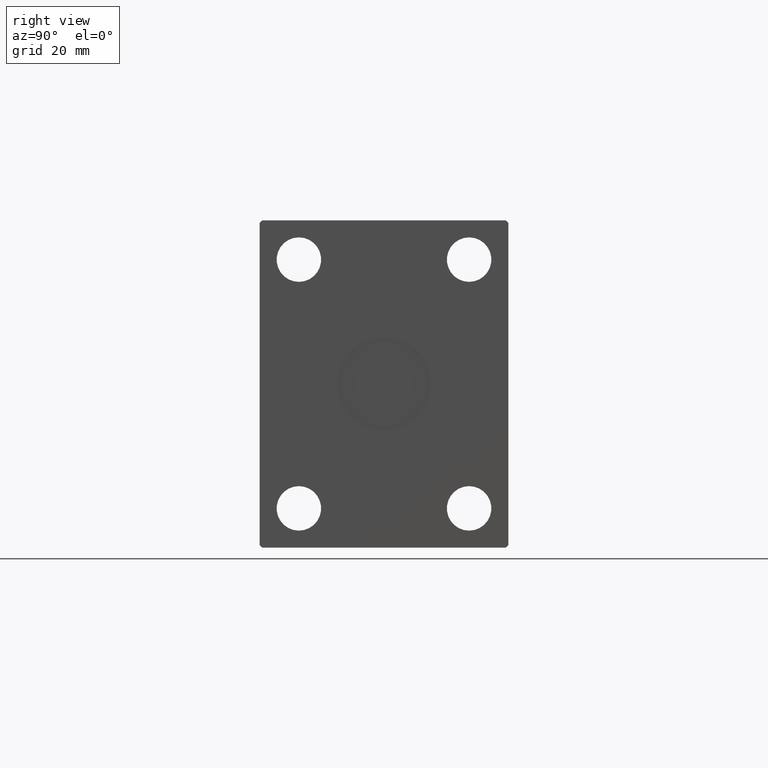
[diagram: clean part render]
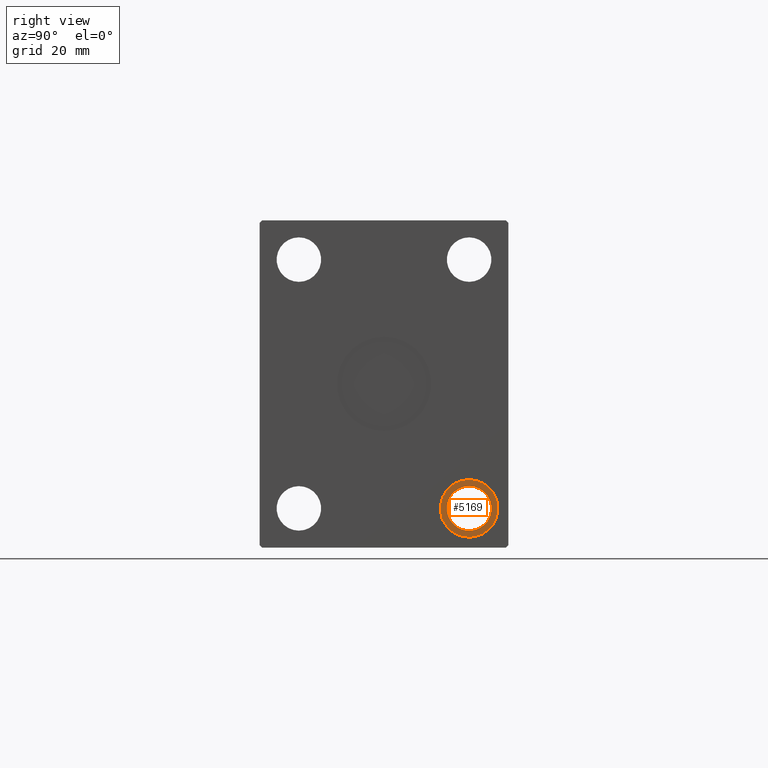
[diagram: same view with one face highlighted and labeled with its STEP entity id]
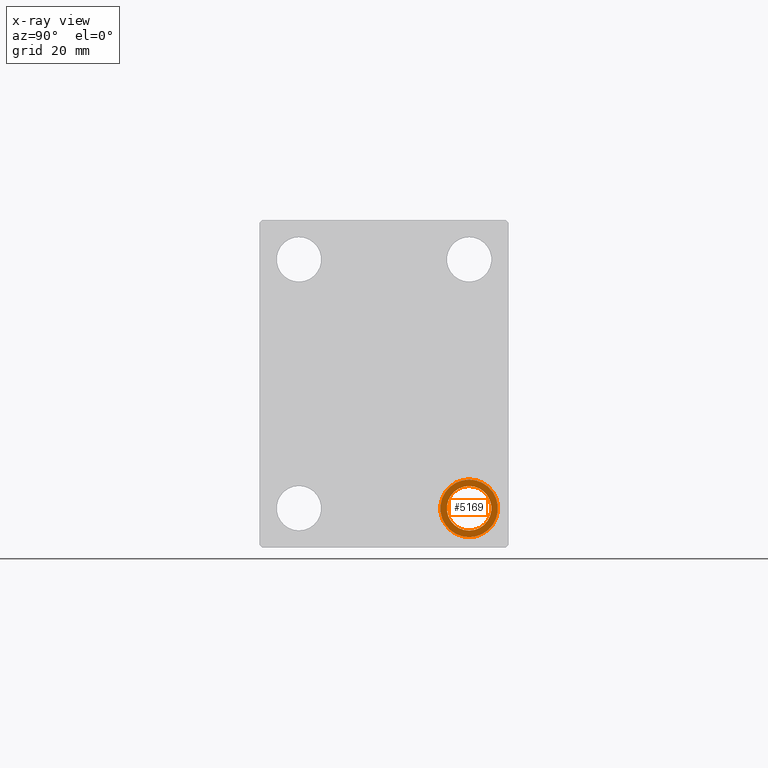
[diagram: x-ray of the same camera — body ghosted, the highlighted face saturated]
A machine part, right view. The second image highlights one B-rep face of the part: STEP entity #5169.
The next image is the same camera in x-ray: the body ghosted, the highlighted face saturated — about 0% of this face is hidden behind the body in this view.
In plain terms, the highlighted planar face has unit normal (1, 0, -0).
Its self-contained STEP definition (entity closure, byte-faithful):
#464 = CARTESIAN_POINT ( 'NONE',  ( 220.6700000000000159, 32.50000000000000000, -39.00000000000000711 ) ) ;
#1655 = VERTEX_POINT ( 'NONE', #18171 ) ;
#1968 = CARTESIAN_POINT ( 'NONE',  ( 220.6700000000000159, 32.50000000000000000, -47.50000000000000000 ) ) ;
#2207 = VERTEX_POINT ( 'NONE', #464 ) ;
#3718 = CARTESIAN_POINT ( 'NONE',  ( 220.6700000000000159, 32.50000000000000000, -55.99999999999999289 ) ) ;
#3882 = EDGE_LOOP ( 'NONE', ( #34381, #25810 ) ) ;
#5169 = ADVANCED_FACE ( 'NONE', ( #30056, #20383 ), #29632, .T. ) ;
#5197 = CIRCLE ( 'NONE', #12736, 8.499999999999992895 ) ;
#6863 = EDGE_CURVE ( 'NONE', #1655, #31486, #25531, .T. ) ;
#7078 = DIRECTION ( 'NONE',  ( 1.000000000000000000, 0.000000000000000000, -0.000000000000000000 ) ) ;
#9352 = AXIS2_PLACEMENT_3D ( 'NONE', #34727, #25053, #22037 ) ;
#10300 = CARTESIAN_POINT ( 'NONE',  ( 220.6700000000000159, 32.50000000000000000, -47.50000000000000000 ) ) ;
#10803 = AXIS2_PLACEMENT_3D ( 'NONE', #20811, #30700, #33919 ) ;
#12736 = AXIS2_PLACEMENT_3D ( 'NONE', #37468, #34039, #27165 ) ;
#15072 = DIRECTION ( 'NONE',  ( -1.000000000000000000, -0.000000000000000000, -0.000000000000000000 ) ) ;
#17915 = ORIENTED_EDGE ( 'NONE', *, *, #28328, .F. ) ;
#18171 = CARTESIAN_POINT ( 'NONE',  ( 220.6700000000000159, 32.50000000000000000, -58.50000000000000000 ) ) ;
#18993 = CIRCLE ( 'NONE', #9352, 10.99999999999999645 ) ;
#20383 = FACE_OUTER_BOUND ( 'NONE', #3882, .T. ) ;
#20811 = CARTESIAN_POINT ( 'NONE',  ( 220.6700000000000159, 32.50000000000000000, -47.50000000000000000 ) ) ;
#20830 = EDGE_LOOP ( 'NONE', ( #28429, #17915 ) ) ;
#22037 = DIRECTION ( 'NONE',  ( 0.000000000000000000, 0.000000000000000000, 1.000000000000000000 ) ) ;
#22298 = EDGE_CURVE ( 'NONE', #2207, #26906, #5197, .T. ) ;
#24825 = EDGE_CURVE ( 'NONE', #31486, #1655, #18993, .T. ) ;
#25053 = DIRECTION ( 'NONE',  ( -1.000000000000000000, -0.000000000000000000, -0.000000000000000000 ) ) ;
#25531 = CIRCLE ( 'NONE', #37884, 10.99999999999999645 ) ;
#25810 = ORIENTED_EDGE ( 'NONE', *, *, #24825, .F. ) ;
#26842 = AXIS2_PLACEMENT_3D ( 'NONE', #10300, #7078, #36283 ) ;
#26906 = VERTEX_POINT ( 'NONE', #3718 ) ;
#27165 = DIRECTION ( 'NONE',  ( 0.000000000000000000, 0.000000000000000000, -1.000000000000000000 ) ) ;
#27452 = CARTESIAN_POINT ( 'NONE',  ( 220.6700000000000159, 32.50000000000000000, -36.50000000000000711 ) ) ;
#28169 = DIRECTION ( 'NONE',  ( 0.000000000000000000, 0.000000000000000000, 1.000000000000000000 ) ) ;
#28328 = EDGE_CURVE ( 'NONE', #26906, #2207, #36858, .T. ) ;
#28429 = ORIENTED_EDGE ( 'NONE', *, *, #22298, .F. ) ;
#29632 = PLANE ( 'NONE',  #26842 ) ;
#30056 = FACE_BOUND ( 'NONE', #20830, .T. ) ;
#30700 = DIRECTION ( 'NONE',  ( 1.000000000000000000, 0.000000000000000000, 0.000000000000000000 ) ) ;
#31486 = VERTEX_POINT ( 'NONE', #27452 ) ;
#33919 = DIRECTION ( 'NONE',  ( 0.000000000000000000, 0.000000000000000000, -1.000000000000000000 ) ) ;
#34039 = DIRECTION ( 'NONE',  ( 1.000000000000000000, 0.000000000000000000, 0.000000000000000000 ) ) ;
#34381 = ORIENTED_EDGE ( 'NONE', *, *, #6863, .F. ) ;
#34727 = CARTESIAN_POINT ( 'NONE',  ( 220.6700000000000159, 32.50000000000000000, -47.50000000000000000 ) ) ;
#36283 = DIRECTION ( 'NONE',  ( 0.000000000000000000, 0.000000000000000000, 1.000000000000000000 ) ) ;
#36858 = CIRCLE ( 'NONE', #10803, 8.499999999999992895 ) ;
#37468 = CARTESIAN_POINT ( 'NONE',  ( 220.6700000000000159, 32.50000000000000000, -47.50000000000000000 ) ) ;
#37884 = AXIS2_PLACEMENT_3D ( 'NONE', #1968, #15072, #28169 ) ;